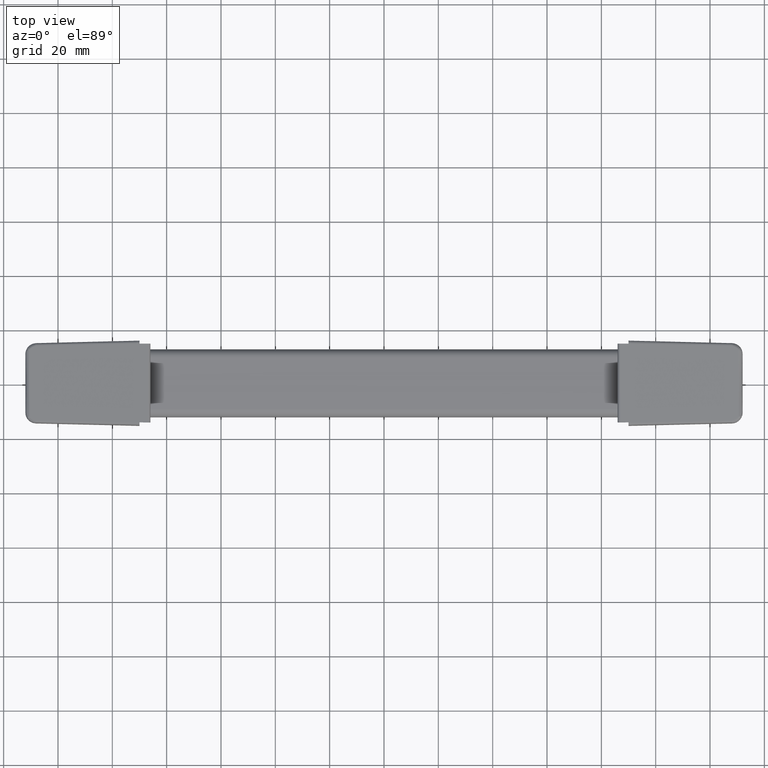
[diagram: clean part render]
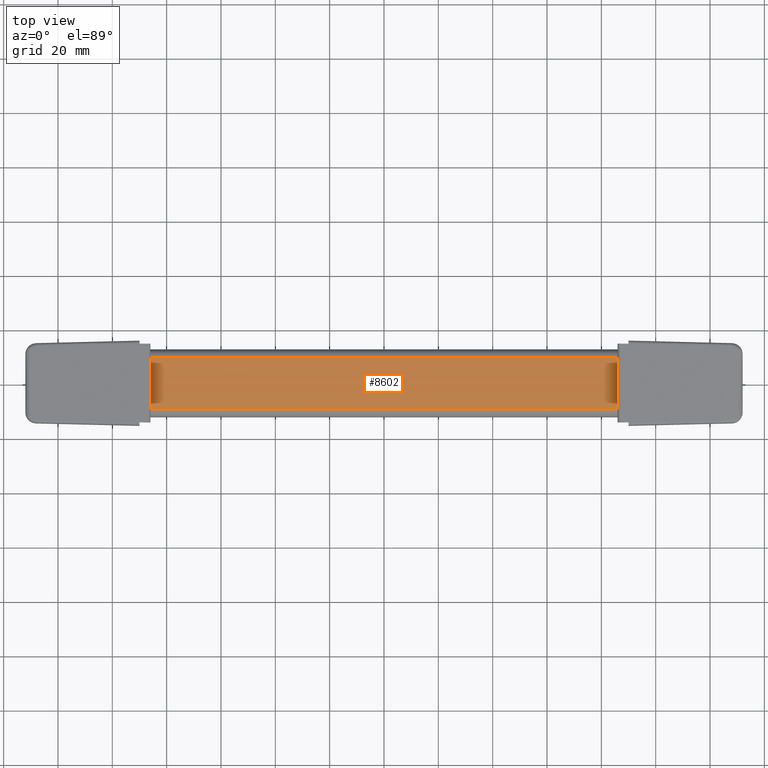
[diagram: same view with one face highlighted and labeled with its STEP entity id]
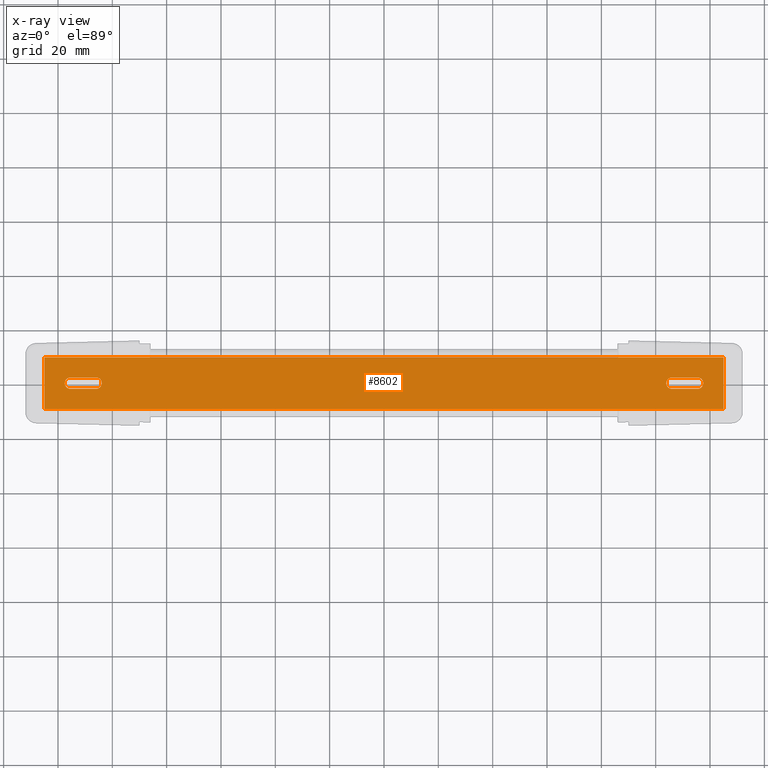
[diagram: x-ray of the same camera — body ghosted, the highlighted face saturated]
A machine part, top view. The second image highlights one B-rep face of the part: STEP entity #8602.
The next image is the same camera in x-ray: the body ghosted, the highlighted face saturated — about 0% of this face is hidden behind the body in this view.
In plain terms, the highlighted face is a freeform B-spline surface patch.
Its self-contained STEP definition (entity closure, byte-faithful):
#7398=CARTESIAN_POINT('',(-115.400000000000010,2.100000000000045,6.0));
#7399=VERTEX_POINT('',#7398);
#7405=CARTESIAN_POINT('',(-117.499999999989300,0.000006727861809,6.0));
#7406=VERTEX_POINT('',#7405);
#7407=CARTESIAN_POINT('',(-117.499999999989300,0.000006727861809,6.0));
#7408=CARTESIAN_POINT('',(-117.500359987032200,0.292128513203168,6.000000000000004));
#7409=CARTESIAN_POINT('',(-117.379835909437500,0.858808404707169,5.999999999999996));
#7410=CARTESIAN_POINT('',(-116.926093118225500,1.503132903619284,5.999999999999999));
#7411=CARTESIAN_POINT('',(-116.258594509860400,1.973192289116144,6.000000000000012));
#7412=CARTESIAN_POINT('',(-115.726546303729900,2.100584844453933,5.999999999999985));
#7413=CARTESIAN_POINT('',(-115.400000000000010,2.100000000000045,6.0));
#7414=B_SPLINE_CURVE_WITH_KNOTS('',3,(#7407,#7408,#7409,#7410,#7411,#7412,#7413),.UNSPECIFIED.,.F.,.U.,(4,1,1,1,4),(0.000000669347082,0.876234403316539,1.700819270766892,2.319427581755935,3.298751271250358),.UNSPECIFIED.);
#7415=EDGE_CURVE('',#7406,#7399,#7414,.T.);
#7417=CARTESIAN_POINT('',(-115.400000000000010,-2.100000000000000,6.0));
#7418=VERTEX_POINT('',#7417);
#7419=CARTESIAN_POINT('',(-115.400000000000010,-2.100000000000000,6.0));
#7420=CARTESIAN_POINT('',(-115.606167540094210,-2.100072266511727,6.000000000000001));
#7421=CARTESIAN_POINT('',(-116.018461443979010,-2.038795919330831,5.999999999999997));
#7422=CARTESIAN_POINT('',(-116.646622348238300,-1.741945271801413,5.999999999999999));
#7423=CARTESIAN_POINT('',(-117.104786324941800,-1.283787045512863,6.000000000000001));
#7424=CARTESIAN_POINT('',(-117.423068475693400,-0.669884767711598,5.999999999999995));
#7425=CARTESIAN_POINT('',(-117.500230401176790,-0.257738223763070,6.000000000000004));
#7426=CARTESIAN_POINT('',(-117.499999999989300,0.000006727861809,6.0));
#7427=B_SPLINE_CURVE_WITH_KNOTS('',3,(#7419,#7420,#7421,#7422,#7423,#7424,#7425,#7426),.UNSPECIFIED.,.F.,.U.,(4,1,1,1,1,4),(0.000000660188694,0.618500699534304,1.237084788635610,2.061679562613088,2.525613647599011,3.298758855307892),.UNSPECIFIED.);
#7428=EDGE_CURVE('',#7418,#7406,#7427,.T.);
#7451=CARTESIAN_POINT('',(-106.0,-2.099999999999845,6.0));
#7452=VERTEX_POINT('',#7451);
#7453=CARTESIAN_POINT('',(-106.0,-2.099999999999845,6.0));
#7454=CARTESIAN_POINT('',(-115.400000000000010,-2.100000000000000,6.0));
#7455=QUASI_UNIFORM_CURVE('',1,(#7453,#7454),.UNSPECIFIED.,.F.,.U.);
#7456=EDGE_CURVE('',#7452,#7418,#7455,.T.);
#7511=CARTESIAN_POINT('',(-103.900000000010910,-0.000006727861739,6.0));
#7512=VERTEX_POINT('',#7511);
#7513=CARTESIAN_POINT('',(-103.900000000010910,-0.000006727861739,6.0));
#7514=CARTESIAN_POINT('',(-103.899975792591800,-0.171803472261163,6.000000000000004));
#7515=CARTESIAN_POINT('',(-103.950806914912700,-0.584159895463627,6.0));
#7516=CARTESIAN_POINT('',(-104.233172880867500,-1.221861500744236,6.000000000000003));
#7517=CARTESIAN_POINT('',(-104.765791322855090,-1.754396748441160,5.999999999999989));
#7518=CARTESIAN_POINT('',(-105.398682666940300,-2.044004752651482,6.000000000000020));
#7519=CARTESIAN_POINT('',(-105.811021553053390,-2.100046344688557,5.999999999999979));
#7520=CARTESIAN_POINT('',(-106.0,-2.099999999999845,6.0));
#7521=B_SPLINE_CURVE_WITH_KNOTS('',3,(#7513,#7514,#7515,#7516,#7517,#7518,#7519,#7520),.UNSPECIFIED.,.F.,.U.,(4,1,1,1,1,4),(0.000000669351694,0.515409226561865,1.237081952212646,2.061674805202644,2.731795907637514,3.298751271250123),.UNSPECIFIED.);
#7522=EDGE_CURVE('',#7512,#7452,#7521,.T.);
#7524=CARTESIAN_POINT('',(-106.0,2.099999999999900,6.0));
#7525=VERTEX_POINT('',#7524);
#7526=CARTESIAN_POINT('',(-106.0,2.099999999999900,6.0));
#7527=CARTESIAN_POINT('',(-105.793858207144200,2.100022441297328,6.000000000000001));
#7528=CARTESIAN_POINT('',(-105.312683613142990,2.028830050815515,6.000000000000001));
#7529=CARTESIAN_POINT('',(-104.694954565642110,1.698592306469167,6.000000000000004));
#7530=CARTESIAN_POINT('',(-104.216778295933690,1.170813567834430,6.0));
#7531=CARTESIAN_POINT('',(-103.955965837774000,0.601321777797262,6.0));
#7532=CARTESIAN_POINT('',(-103.899954528681110,0.188974628914923,5.999999999999997));
#7533=CARTESIAN_POINT('',(-103.900000000010910,-0.000006727861739,6.0));
#7534=B_SPLINE_CURVE_WITH_KNOTS('',3,(#7526,#7527,#7528,#7529,#7530,#7531,#7532,#7533),.UNSPECIFIED.,.F.,.U.,(4,1,1,1,1,4),(0.000000660187966,0.618500699534173,1.443256068757343,2.061679562613096,2.731802184463999,3.298758855307647),.UNSPECIFIED.);
#7535=EDGE_CURVE('',#7525,#7512,#7534,.T.);
#7556=CARTESIAN_POINT('',(-115.400000000000010,2.100000000000045,6.0));
#7557=CARTESIAN_POINT('',(-106.0,2.099999999999900,6.0));
#7558=QUASI_UNIFORM_CURVE('',1,(#7556,#7557),.UNSPECIFIED.,.F.,.U.);
#7559=EDGE_CURVE('',#7399,#7525,#7558,.T.);
#7822=CARTESIAN_POINT('',(106.0,2.099999999999900,6.0));
#7823=VERTEX_POINT('',#7822);
#7829=CARTESIAN_POINT('',(103.900000000010910,0.000006727861797,5.999999999999999));
#7830=VERTEX_POINT('',#7829);
#7831=CARTESIAN_POINT('',(103.900000000010910,0.000006727861797,5.999999999999999));
#7832=CARTESIAN_POINT('',(103.899759789965100,0.257761462913257,6.000000000000004));
#7833=CARTESIAN_POINT('',(103.976938438413600,0.669893001095324,5.999999999999987));
#7834=CARTESIAN_POINT('',(104.263502432761600,1.222285597487019,6.000000000000012));
#7835=CARTESIAN_POINT('',(104.683283095213800,1.685712223539300,5.999999999999973));
#7836=CARTESIAN_POINT('',(105.295590265671090,2.022640239130512,6.000000000000017));
#7837=CARTESIAN_POINT('',(105.776653842313610,2.100089787883193,5.999999999999983));
#7838=CARTESIAN_POINT('',(106.0,2.099999999999900,6.0));
#7839=B_SPLINE_CURVE_WITH_KNOTS('',3,(#7831,#7832,#7833,#7834,#7835,#7836,#7837,#7838),.UNSPECIFIED.,.F.,.U.,(4,1,1,1,1,4),(0.000000669342588,0.773142494900709,1.237081952207649,1.855504721727597,2.628699766146428,3.298751271250122),.UNSPECIFIED.);
#7840=EDGE_CURVE('',#7830,#7823,#7839,.T.);
#7842=CARTESIAN_POINT('',(106.0,-2.099999999999845,6.0));
#7843=VERTEX_POINT('',#7842);
#7844=CARTESIAN_POINT('',(106.0,-2.099999999999845,6.0));
#7845=CARTESIAN_POINT('',(105.621709149200100,-2.101104018333425,6.0));
#7846=CARTESIAN_POINT('',(105.107451705635400,-1.957063399794951,6.000000000000005));
#7847=CARTESIAN_POINT('',(104.511291003032400,-1.514583134232876,5.999999999999993));
#7848=CARTESIAN_POINT('',(104.054295297670510,-0.944217029108086,6.000000000000025));
#7849=CARTESIAN_POINT('',(103.899204302084600,-0.360961157011578,5.999999999999993));
#7850=CARTESIAN_POINT('',(103.900000000010910,0.000006727861797,5.999999999999999));
#7851=B_SPLINE_CURVE_WITH_KNOTS('',3,(#7844,#7845,#7846,#7847,#7848,#7849,#7850),.UNSPECIFIED.,.F.,.U.,(4,1,1,1,4),(0.000000660187349,1.133989876525562,1.546326088598390,2.216336529754322,3.298758855307650),.UNSPECIFIED.);
#7852=EDGE_CURVE('',#7843,#7830,#7851,.T.);
#7867=CARTESIAN_POINT('',(115.400000000000010,2.100000000000045,6.0));
#7868=VERTEX_POINT('',#7867);
#7876=CARTESIAN_POINT('',(115.400000000000010,2.100000000000045,6.0));
#7877=CARTESIAN_POINT('',(106.0,2.099999999999900,6.0));
#7878=QUASI_UNIFORM_CURVE('',1,(#7876,#7877),.UNSPECIFIED.,.F.,.U.);
#7879=EDGE_CURVE('',#7868,#7823,#7878,.T.);
#7932=CARTESIAN_POINT('',(115.400000000000010,-2.099999999999955,6.0));
#7933=VERTEX_POINT('',#7932);
#7939=CARTESIAN_POINT('',(117.499999999989200,-0.000006727861723,6.000000000000001));
#7940=VERTEX_POINT('',#7939);
#7941=CARTESIAN_POINT('',(117.499999999989200,-0.000006727861723,6.000000000000001));
#7942=CARTESIAN_POINT('',(117.500553254152900,-0.326523981661410,6.000000000000007));
#7943=CARTESIAN_POINT('',(117.365090257347900,-0.892953122885191,5.999999999999982));
#7944=CARTESIAN_POINT('',(116.897572461505900,-1.523058385339595,6.000000000000027));
#7945=CARTESIAN_POINT('',(116.258594676252700,-1.973202447390917,5.999999999999961));
#7946=CARTESIAN_POINT('',(115.726551516342500,-2.100569400941094,6.000000000000018));
#7947=CARTESIAN_POINT('',(115.400000000000010,-2.099999999999955,6.0));
#7948=B_SPLINE_CURVE_WITH_KNOTS('',3,(#7941,#7942,#7943,#7944,#7945,#7946,#7947),.UNSPECIFIED.,.F.,.U.,(4,1,1,1,4),(0.000000669342596,0.979320611938595,1.700819270764320,2.319427581754849,3.298751271250325),.UNSPECIFIED.);
#7949=EDGE_CURVE('',#7940,#7933,#7948,.T.);
#7951=CARTESIAN_POINT('',(115.400000000000010,2.100000000000045,6.0));
#7952=CARTESIAN_POINT('',(115.726517542060710,2.100551786105296,6.000000000000003));
#7953=CARTESIAN_POINT('',(116.292948831588500,1.965087618973730,6.0));
#7954=CARTESIAN_POINT('',(116.923053512002500,1.497566639499470,5.999999999999997));
#7955=CARTESIAN_POINT('',(117.373200650274200,0.858590196254680,6.000000000000003));
#7956=CARTESIAN_POINT('',(117.500571026366900,0.326545198633263,6.000000000000004));
#7957=CARTESIAN_POINT('',(117.499999999989200,-0.000006727861723,6.000000000000001));
#7958=B_SPLINE_CURVE_WITH_KNOTS('',3,(#7951,#7952,#7953,#7954,#7955,#7956,#7957),.UNSPECIFIED.,.F.,.U.,(4,1,1,1,4),(0.000000660188271,0.979322859041541,1.700823189839852,2.319432908616818,3.298758855307853),.UNSPECIFIED.);
#7959=EDGE_CURVE('',#7868,#7940,#7958,.T.);
#7971=CARTESIAN_POINT('',(106.0,-2.099999999999845,6.0));
#7972=CARTESIAN_POINT('',(115.400000000000010,-2.099999999999955,6.0));
#7973=QUASI_UNIFORM_CURVE('',1,(#7971,#7972),.UNSPECIFIED.,.F.,.U.);
#7974=EDGE_CURVE('',#7843,#7933,#7973,.T.);
#8217=CARTESIAN_POINT('',(125.0,9.500000000000000,6.0));
#8218=VERTEX_POINT('',#8217);
#8230=CARTESIAN_POINT('',(125.0,-9.500000000000000,6.0));
#8231=VERTEX_POINT('',#8230);
#8232=CARTESIAN_POINT('',(125.0,9.500000000000000,6.0));
#8233=CARTESIAN_POINT('',(125.0,-9.500000000000000,6.0));
#8234=QUASI_UNIFORM_CURVE('',1,(#8232,#8233),.UNSPECIFIED.,.F.,.U.);
#8235=EDGE_CURVE('',#8218,#8231,#8234,.T.);
#8310=CARTESIAN_POINT('',(-125.0,9.500000000000000,6.0));
#8311=VERTEX_POINT('',#8310);
#8357=CARTESIAN_POINT('',(-125.0,-9.500000000000000,6.0));
#8358=VERTEX_POINT('',#8357);
#8371=CARTESIAN_POINT('',(-125.0,9.500000000000000,6.0));
#8372=CARTESIAN_POINT('',(-125.0,-9.500000000000000,6.0));
#8373=QUASI_UNIFORM_CURVE('',1,(#8371,#8372),.UNSPECIFIED.,.F.,.U.);
#8374=EDGE_CURVE('',#8311,#8358,#8373,.T.);
#8429=CARTESIAN_POINT('',(-125.0,-9.500000000000000,6.0));
#8430=CARTESIAN_POINT('',(125.0,-9.500000000000000,6.0));
#8431=QUASI_UNIFORM_CURVE('',1,(#8429,#8430),.UNSPECIFIED.,.F.,.U.);
#8432=EDGE_CURVE('',#8358,#8231,#8431,.T.);
#8471=CARTESIAN_POINT('',(-125.0,9.500000000000000,6.0));
#8472=CARTESIAN_POINT('',(125.0,9.500000000000000,6.0));
#8473=QUASI_UNIFORM_CURVE('',1,(#8471,#8472),.UNSPECIFIED.,.F.,.U.);
#8474=EDGE_CURVE('',#8311,#8218,#8473,.T.);
#8575=CARTESIAN_POINT('',(-137.487499515451500,10.449049963174311,6.0));
#8576=CARTESIAN_POINT('',(-137.487499515451500,-10.449050472794021,6.0));
#8577=CARTESIAN_POINT('',(137.487506220974010,10.449049963174311,6.0));
#8578=CARTESIAN_POINT('',(137.487506220974010,-10.449050472794021,6.0));
#8579=B_SPLINE_SURFACE_WITH_KNOTS('',1,1,((#8575,#8577),(#8576,#8578)),.UNSPECIFIED.,.F.,.F.,.U.,(2,2),(2,2),(0.0,20.898100435968342),(0.0,274.975005736425490),.UNSPECIFIED.);
#8580=ORIENTED_EDGE('',*,*,#8235,.F.);
#8581=ORIENTED_EDGE('',*,*,#8474,.F.);
#8582=ORIENTED_EDGE('',*,*,#8374,.T.);
#8583=ORIENTED_EDGE('',*,*,#8432,.T.);
#8584=EDGE_LOOP('',(#8580,#8581,#8582,#8583));
#8585=FACE_OUTER_BOUND('',#8584,.T.);
#8586=ORIENTED_EDGE('',*,*,#7559,.T.);
#8587=ORIENTED_EDGE('',*,*,#7535,.T.);
#8588=ORIENTED_EDGE('',*,*,#7522,.T.);
#8589=ORIENTED_EDGE('',*,*,#7456,.T.);
#8590=ORIENTED_EDGE('',*,*,#7428,.T.);
#8591=ORIENTED_EDGE('',*,*,#7415,.T.);
#8592=EDGE_LOOP('',(#8586,#8587,#8588,#8589,#8590,#8591));
#8593=FACE_BOUND('',#8592,.T.);
#8594=ORIENTED_EDGE('',*,*,#7974,.F.);
#8595=ORIENTED_EDGE('',*,*,#7852,.T.);
#8596=ORIENTED_EDGE('',*,*,#7840,.T.);
#8597=ORIENTED_EDGE('',*,*,#7879,.F.);
#8598=ORIENTED_EDGE('',*,*,#7959,.T.);
#8599=ORIENTED_EDGE('',*,*,#7949,.T.);
#8600=EDGE_LOOP('',(#8594,#8595,#8596,#8597,#8598,#8599));
#8601=FACE_BOUND('',#8600,.T.);
#8602=ADVANCED_FACE('',(#8585,#8593,#8601),#8579,.T.);